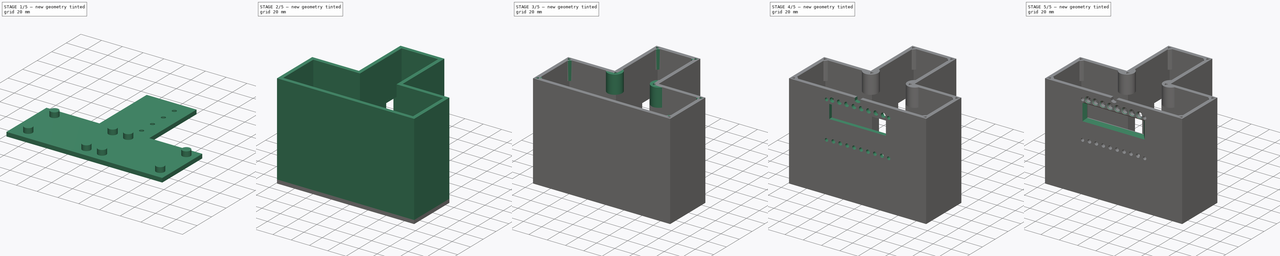
[diagram: build sequence overview — one tinted view per stage of 5, left to right]
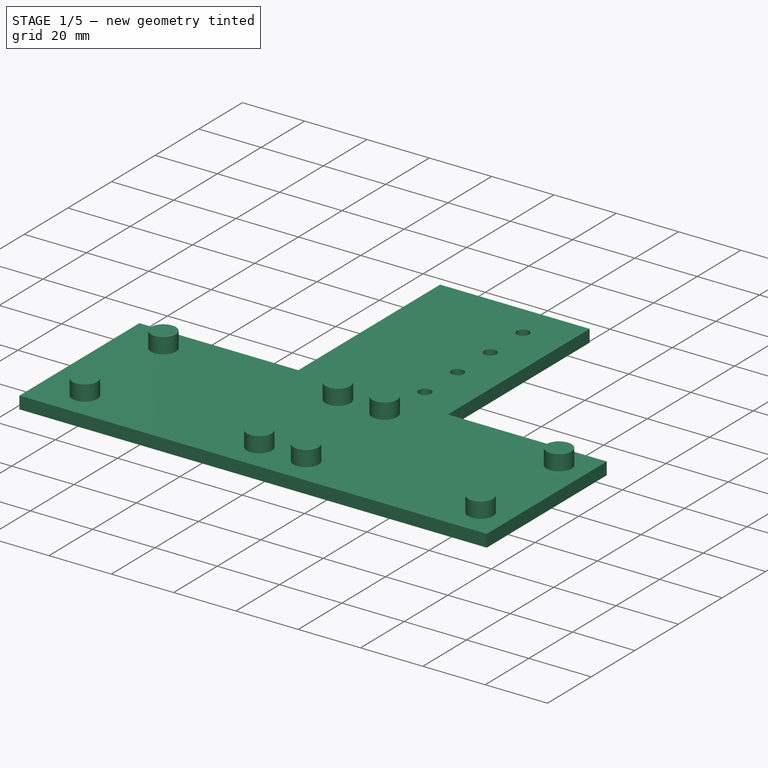
[diagram: stage 1 of 5 — iso view after this stage's code; geometry added in this stage tinted green]
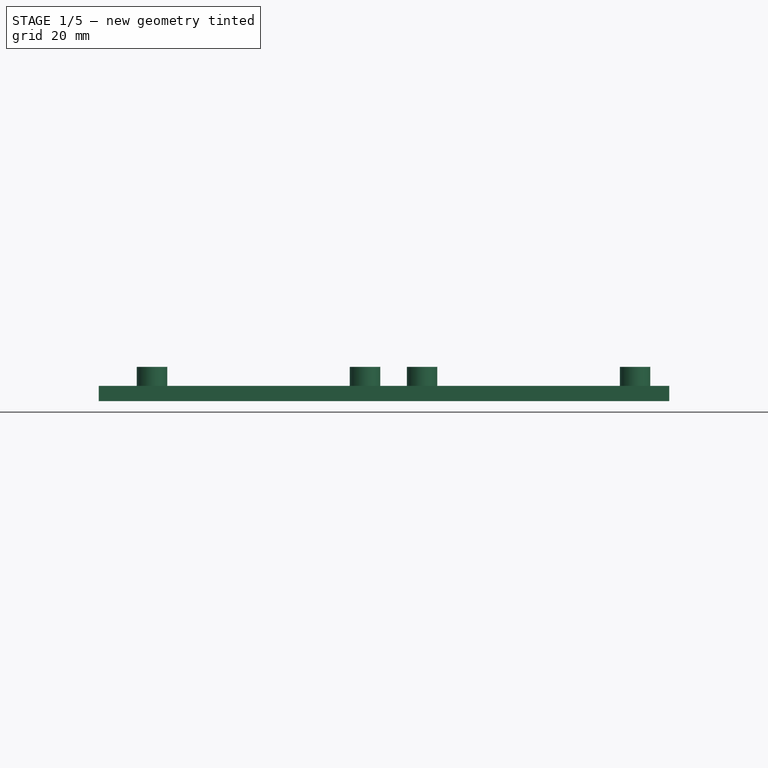
[diagram: stage 1 of 5 — front view after this stage's code; geometry added in this stage tinted green]
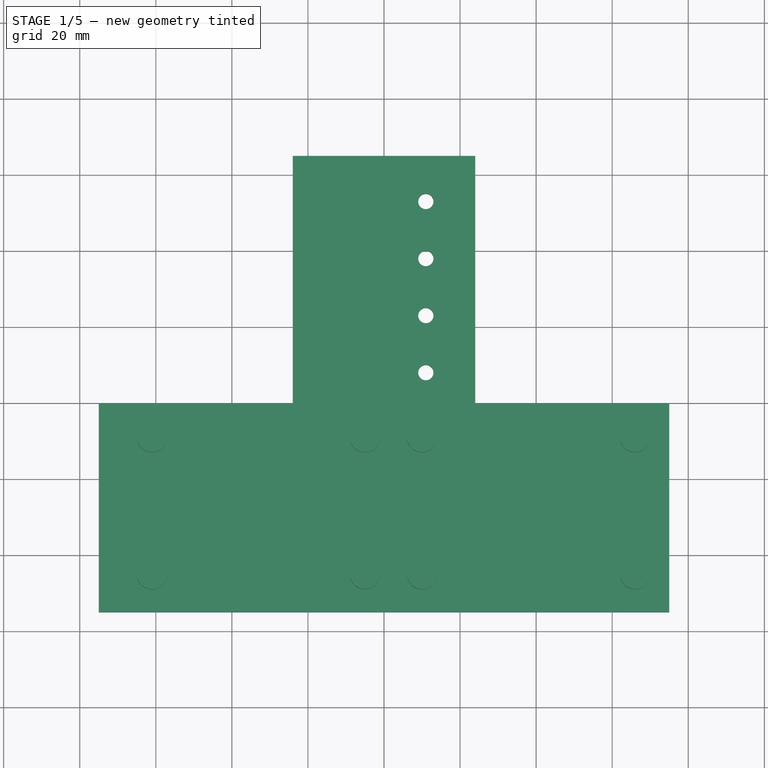
[diagram: stage 1 of 5 — top view after this stage's code; geometry added in this stage tinted green]
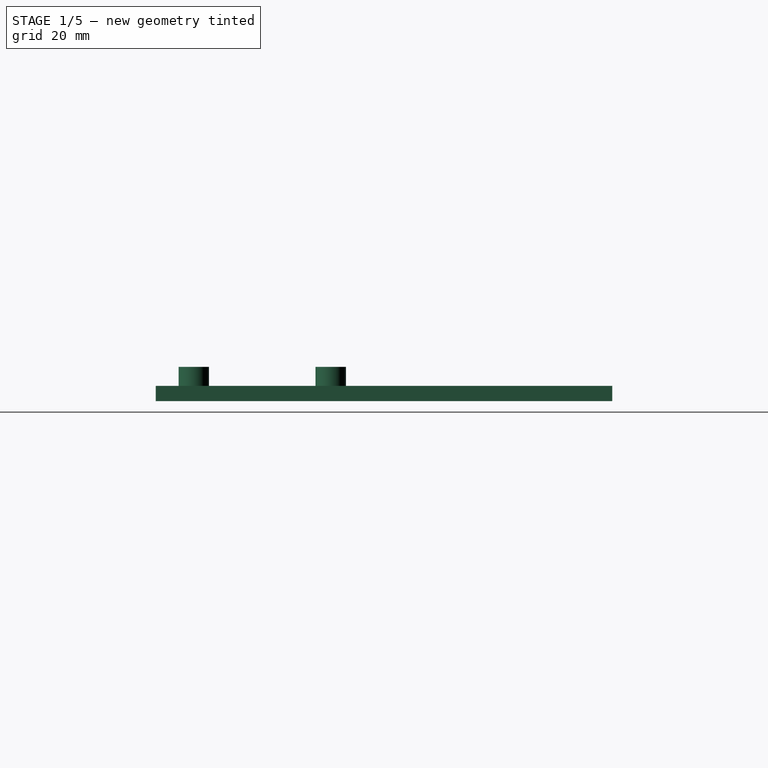
[diagram: stage 1 of 5 — right view after this stage's code; geometry added in this stage tinted green]
FCSTD DOCUMENT  (FreeCAD 0.19R)
Label: case
License: All rights reserved
LicenseURL: http://en.wikipedia.org/wiki/All_rights_reserved
objects: PartDesign::CoordinateSystem×16, Sketcher::SketchObject×12, PartDesign::Pocket×7, PartDesign::Pad×5, PartDesign::Chamfer×3, PartDesign::Body×1
note: 59 computed .brp shape members not serialized (recipe doc carries the construction recipe); baked Part::Feature solids carry a one-line shape summary decoded from their .brp

FEATURE [Sketcher::SketchObject] Sketch
  FullyConstrained = true
  MapMode = 5
  Support = -> [XY_Plane]
  sketch-geometry (8):
    g0: LineSegment StartX=-24 StartY=65 StartZ=0 EndX=24 EndY=65 EndZ=0
    g1: LineSegment StartX=75 StartY=-55 StartZ=0 EndX=-75 EndY=-55 EndZ=0
    g2: LineSegment StartX=-24 StartY=65 StartZ=0 EndX=-24 EndY=0 EndZ=0
    g3: LineSegment StartX=-75 StartY=-55 StartZ=0 EndX=-75 EndY=0 EndZ=0
    g4: LineSegment StartX=-75 StartY=0 StartZ=0 EndX=-24 EndY=0 EndZ=0
    g5: LineSegment StartX=75 StartY=-55 StartZ=0 EndX=75 EndY=0 EndZ=0
    g6: LineSegment StartX=75 StartY=0 StartZ=0 EndX=24 EndY=0 EndZ=0
    g7: LineSegment StartX=24 StartY=0 StartZ=0 EndX=24 EndY=65 EndZ=0
  constraints (22):
    c: Horizontal(g1)
    c: DistanceX(g0,g0) = 48
    c: Symmetric(g0,g0,g-2)
    c: DistanceY(g1,g0) = 120
    c: Coincident(g2,g0)
    c: Vertical(g2)
    c: DistanceX(g1,g1) = 150
    c: Coincident(g3,g1)
    c: Vertical(g3)
    c: Coincident(g4,g3)
    c: Horizontal(g4)
    c: Coincident(g2,g4)
    c: DistanceY(g2,g2) = 65
    c: Coincident(g5,g1)
    c: Vertical(g5)
    c: Coincident(g6,g5)
    c: Horizontal(g6)
    c: Coincident(g7,g6)
    c: Coincident(g7,g0)
    c: Vertical(g7)
    c: Symmetric(g3,g5,g-2)
    c: PointOnObject(g6,g-1)
FEATURE [PartDesign::Pad] Pad
  Direction = (1,1,1)
  Length = 4
  Length2 = 100
  Profile = -> Sketch
  Type = 0
FEATURE [Sketcher::SketchObject] Sketch001
  ExternalGeometry = -> [Pad]
  FullyConstrained = true
  MapMode = 5
  Placement = pos=(0,0,4) rot=(0,0,1;0rad)
  Support = -> [Pad]
  sketch-geometry (4):
    g0: Circle CenterX=11 CenterY=53 CenterZ=0 NormalX=0 NormalY=0 NormalZ=1 AngleXU=0 Radius=2
    g1: Circle CenterX=11 CenterY=38 CenterZ=0 NormalX=0 NormalY=0 NormalZ=1 AngleXU=0 Radius=2
    g2: Circle CenterX=11 CenterY=23 CenterZ=0 NormalX=0 NormalY=0 NormalZ=1 AngleXU=0 Radius=2
    g3: Circle CenterX=11 CenterY=8 CenterZ=0 NormalX=0 NormalY=0 NormalZ=1 AngleXU=0 Radius=2
  constraints (12):
    c: DistanceY(g1,g0) = 15
    c: Equal(g0,g1)
    c: Equal(g1,g2)
    c: Equal(g2,g3)
    c: Diameter(g0) = 4
    c: DistanceY(g3,g2) = 15
    c: Vertical(g1,g0)
    c: Vertical(g2,g3)
    c: Vertical(g2,g1)
    c: DistanceY(g2,g1) = 15
    c: DistanceY(g0,g-4) = 12
    c: DistanceX(g0,g-4) = 13
FEATURE [PartDesign::CoordinateSystem] LCS_3  label="LCS_BASE"
  AttacherType = Attacher::AttachEngine3D
  MapMode = 1
  Placement = pos=(-75,-55,0) rot=(0.57735,0.57735,0.57735;2.0944rad)
  Support = -> [Sketch]
FEATURE [PartDesign::Pocket] Pocket
  BaseFeature = -> Pad
  Length = 5
  Length2 = 100
  Profile = -> Sketch001
  Type = 1
FEATURE [PartDesign::CoordinateSystem] LCS_1
  AttacherType = Attacher::AttachEngine3D
  MapMode = 11
  Placement = pos=(11,53,4) rot=(0,0,1;1.5708rad)
  Support = -> [Pocket]
FEATURE [PartDesign::CoordinateSystem] LCS_2
  AttacherType = Attacher::AttachEngine3D
  MapMode = 11
  Placement = pos=(11,23,4) rot=(0,0,1;1.5708rad)
  Support = -> [Pocket]
FEATURE [Sketcher::SketchObject] Sketch002
  ExternalGeometry = -> [Pocket]
  FullyConstrained = true
  MapMode = 5
  Placement = pos=(0,0,4) rot=(0,0,1;0rad)
  Support = -> [Pocket]
  sketch-geometry (8):
    g0: Circle CenterX=10 CenterY=-9 CenterZ=0 NormalX=0 NormalY=0 NormalZ=1 AngleXU=0 Radius=4
    g1: Circle CenterX=66 CenterY=-9 CenterZ=0 NormalX=0 NormalY=0 NormalZ=1 AngleXU=0 Radius=4
    g2: Circle CenterX=10 CenterY=-45 CenterZ=0 NormalX=0 NormalY=0 NormalZ=1 AngleXU=0 Radius=4
    g3: Circle CenterX=66 CenterY=-45 CenterZ=0 NormalX=0 NormalY=0 NormalZ=1 AngleXU=0 Radius=4
    g4: Circle CenterX=-61 CenterY=-9 CenterZ=0 NormalX=0 NormalY=0 NormalZ=1 AngleXU=0 Radius=4
    g5: Circle CenterX=-5 CenterY=-9 CenterZ=0 NormalX=0 NormalY=0 NormalZ=1 AngleXU=0 Radius=4
    g6: Circle CenterX=-5 CenterY=-45 CenterZ=0 NormalX=0 NormalY=0 NormalZ=1 AngleXU=0 Radius=4
    g7: Circle CenterX=-61 CenterY=-45 CenterZ=0 NormalX=0 NormalY=0 NormalZ=1 AngleXU=0 Radius=4
  constraints (24):
    c: Equal(g3,g2)
    c: Equal(g2,g0)
    c: Equal(g0,g1)
    c: Horizontal(g0,g1)
    c: Horizontal(g2,g3)
    c: Vertical(g3,g1)
    c: Vertical(g0,g2)
    c: Diameter(g3) = 8
    c: DistanceY(g3,g1) = 36
    c: DistanceX(g2,g3) = 56
    c: DistanceX(g3,g-3) = 9
    c: DistanceY(g-3,g3) = 10
    c: Equal(g7,g6)
    c: Equal(g6,g5)
    c: Equal(g5,g4)
    c: Diameter(g6) = 8
    c: Vertical(g6,g5)
    c: Vertical(g4,g7)
    c: Horizontal(g4,g5)
    c: Horizontal(g7,g6)
    c: DistanceY(g6,g5) = 36
    c: DistanceX(g4,g5) = 56
    c: Horizontal(g2,g6)
    c: DistanceX(g6,g2) = 15
FEATURE [PartDesign::Pad] Pad001
  BaseFeature = -> Pocket
  Direction = (1,1,1)
  Length = 5
  Length2 = 100
  Profile = -> Sketch002
  Type = 0
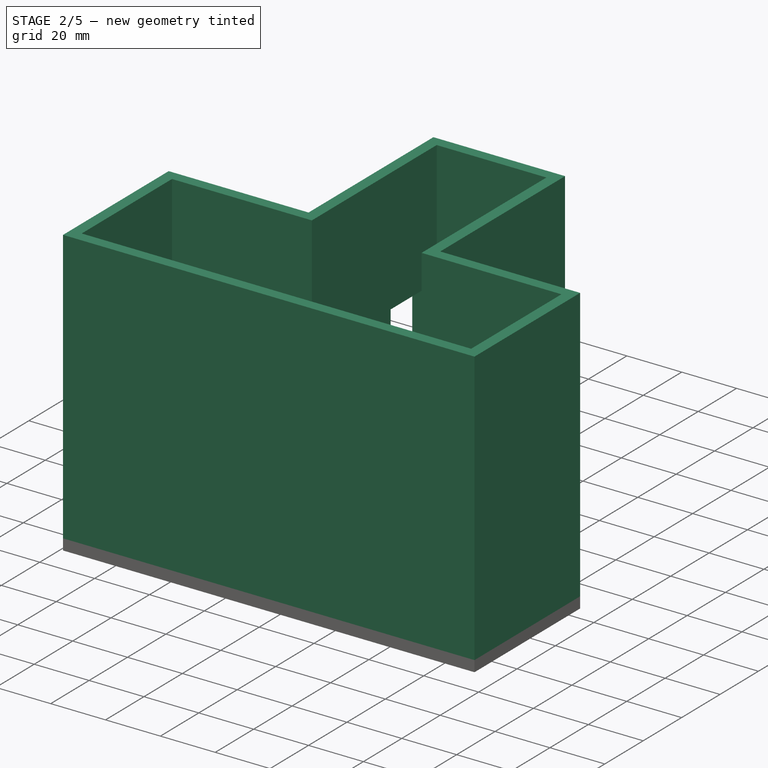
[diagram: stage 2 of 5 — iso view after this stage's code; geometry added in this stage tinted green]
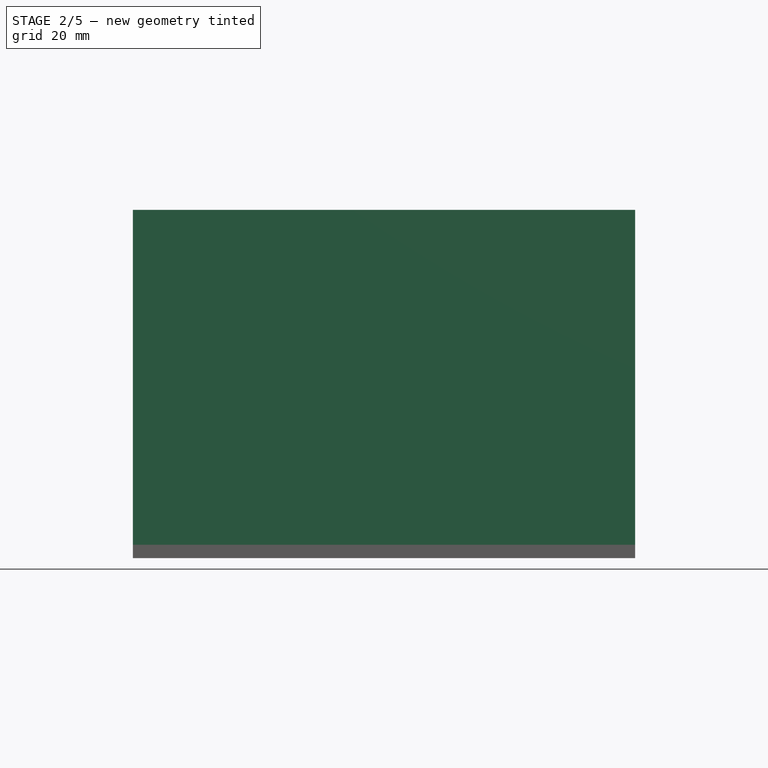
[diagram: stage 2 of 5 — front view after this stage's code; geometry added in this stage tinted green]
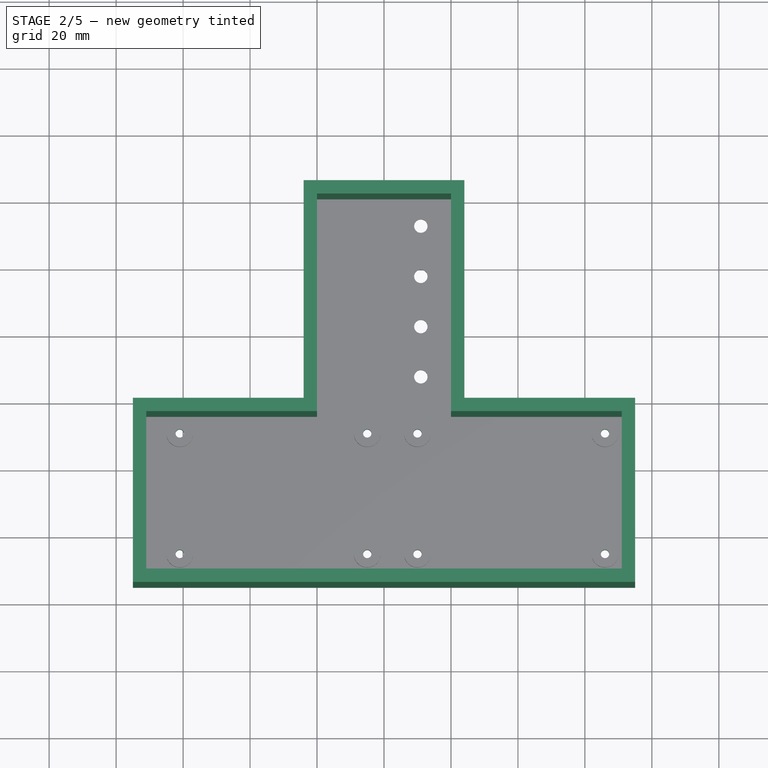
[diagram: stage 2 of 5 — top view after this stage's code; geometry added in this stage tinted green]
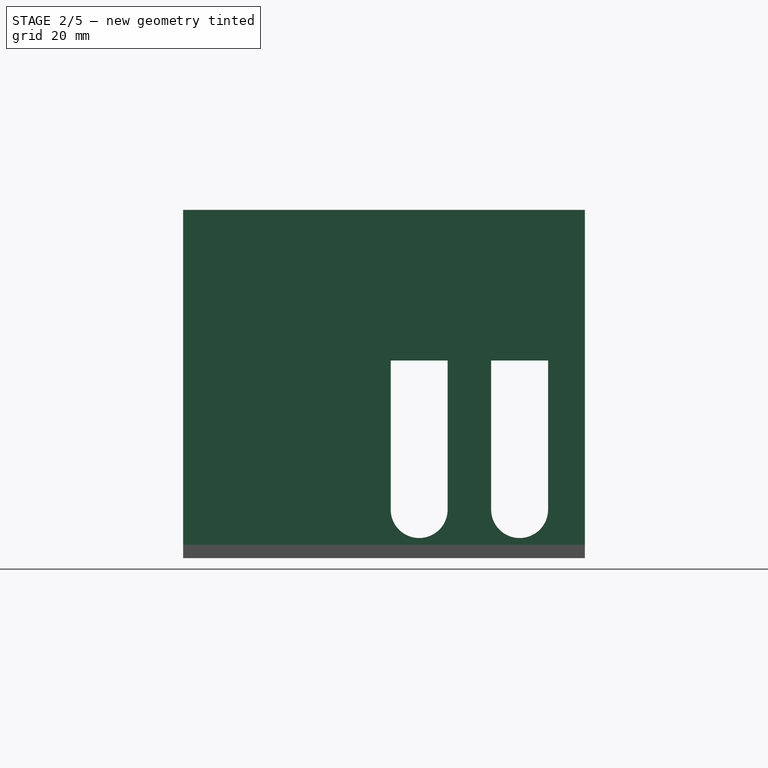
[diagram: stage 2 of 5 — right view after this stage's code; geometry added in this stage tinted green]
FEATURE [Sketcher::SketchObject] Sketch003
  ExternalGeometry = -> [Pad001]
  FullyConstrained = true
  MapMode = 5
  Placement = pos=(0,0,9) rot=(0,0,1;0rad)
  Support = -> [Pad001]
  sketch-geometry (8):
    g0: Circle CenterX=-61 CenterY=-9 CenterZ=0 NormalX=0 NormalY=0 NormalZ=1 AngleXU=0 Radius=1.25
    g1: Circle CenterX=-61 CenterY=-45 CenterZ=0 NormalX=0 NormalY=0 NormalZ=1 AngleXU=0 Radius=1.25
    g2: Circle CenterX=-5 CenterY=-45 CenterZ=0 NormalX=0 NormalY=0 NormalZ=1 AngleXU=0 Radius=1.25
    g3: Circle CenterX=-5 CenterY=-9 CenterZ=0 NormalX=0 NormalY=0 NormalZ=1 AngleXU=0 Radius=1.25
    g4: Circle CenterX=10 CenterY=-9 CenterZ=0 NormalX=0 NormalY=0 NormalZ=1 AngleXU=0 Radius=1.25
    g5: Circle CenterX=66 CenterY=-9 CenterZ=0 NormalX=0 NormalY=0 NormalZ=1 AngleXU=0 Radius=1.25
    g6: Circle CenterX=10 CenterY=-45 CenterZ=0 NormalX=0 NormalY=0 NormalZ=1 AngleXU=0 Radius=1.25
    g7: Circle CenterX=66 CenterY=-45 CenterZ=0 NormalX=0 NormalY=0 NormalZ=1 AngleXU=0 Radius=1.25
  constraints (16):
    c: Coincident(g0,g-3)
    c: Coincident(g1,g-4)
    c: Coincident(g2,g-5)
    c: Coincident(g3,g-8)
    c: Coincident(g4,g-7)
    c: Coincident(g5,g-10)
    c: Coincident(g6,g-6)
    c: Coincident(g7,g-9)
    c: Equal(g0,g1)
    c: Equal(g1,g3)
    c: Equal(g3,g4)
    c: Equal(g4,g2)
    c: Equal(g2,g6)
    c: Equal(g6,g7)
    c: Equal(g7,g5)
    c: Diameter(g5) = 2.5
FEATURE [PartDesign::Pocket] Pocket001
  BaseFeature = -> Pad001
  Length = 5
  Length2 = 100
  Profile = -> Sketch003
  Type = 1
FEATURE [PartDesign::CoordinateSystem] LCS_4
  AttacherType = Attacher::AttachEngine3D
  MapMode = 11
  Placement = pos=(-5,-45,9) rot=(0,0,1;1.5708rad)
  Support = -> [Pocket001]
FEATURE [PartDesign::CoordinateSystem] LCS_5
  AttacherType = Attacher::AttachEngine3D
  MapMode = 11
  Placement = pos=(66,-45,9) rot=(0,0,1;1.5708rad)
  Support = -> [Pocket001]
FEATURE [Sketcher::SketchObject] Sketch004
  ExternalGeometry = -> [Pocket001]
  FullyConstrained = true
  MapMode = 5
  Placement = pos=(0,0,4) rot=(0,0,1;0rad)
  Support = -> [Pocket001]
  sketch-geometry (16):
    g0: LineSegment StartX=-75 StartY=0 StartZ=0 EndX=-24 EndY=0 EndZ=0
    g1: LineSegment StartX=-24 StartY=0 StartZ=0 EndX=-24 EndY=65 EndZ=0
    g2: LineSegment StartX=-24 StartY=65 StartZ=0 EndX=24 EndY=65 EndZ=0
    g3: LineSegment StartX=24 StartY=65 StartZ=0 EndX=24 EndY=0 EndZ=0
    g4: LineSegment StartX=24 StartY=0 StartZ=0 EndX=75 EndY=0 EndZ=0
    g5: LineSegment StartX=75 StartY=0 StartZ=0 EndX=75 EndY=-55 EndZ=0
    g6: LineSegment StartX=75 StartY=-55 StartZ=0 EndX=-75 EndY=-55 EndZ=0
    g7: LineSegment StartX=-75 StartY=-55 StartZ=0 EndX=-75 EndY=0 EndZ=0
    g8: LineSegment StartX=-71 StartY=-4 StartZ=0 EndX=-20 EndY=-4 EndZ=0
    g9: LineSegment StartX=-20 StartY=-4 StartZ=0 EndX=-20 EndY=61 EndZ=0
    g10: LineSegment StartX=-20 StartY=61 StartZ=0 EndX=20 EndY=61 EndZ=0
    g11: LineSegment StartX=20 StartY=61 StartZ=0 EndX=20 EndY=-4 EndZ=0
    g12: LineSegment StartX=20 StartY=-4 StartZ=0 EndX=71 EndY=-4 EndZ=0
    g13: LineSegment StartX=71 StartY=-4 StartZ=0 EndX=71 EndY=-51 EndZ=0
    g14: LineSegment StartX=71 StartY=-51 StartZ=0 EndX=-71 EndY=-51 EndZ=0
    g15: LineSegment StartX=-71 StartY=-51 StartZ=0 EndX=-71 EndY=-4 EndZ=0
  constraints (40):
    c: Coincident(g-5,g0)
    c: Coincident(g0,g-5)
    c: Coincident(g0,g1)
    c: Coincident(g1,g-6)
    c: Coincident(g1,g2)
    c: Coincident(g2,g-6)
    c: Coincident(g2,g3)
    c: Coincident(g3,g-4)
    c: Coincident(g3,g4)
    c: Coincident(g4,g-4)
    c: Coincident(g4,g5)
    c: Coincident(g5,g-3)
    c: Coincident(g5,g6)
    c: Coincident(g6,g-3)
    c: Coincident(g6,g7)
    c: Coincident(g7,g0)
    c: Horizontal(g8)
    c: Coincident(g8,g9)
    c: Vertical(g9)
    c: Coincident(g9,g10)
    c: Horizontal(g10)
    c: Coincident(g10,g11)
    c: Vertical(g11)
    c: Coincident(g11,g12)
    c: Horizontal(g12)
    c: Coincident(g12,g13)
    c: Vertical(g13)
    c: Coincident(g13,g14)
    c: Horizontal(g14)
    c: Coincident(g14,g15)
    c: Coincident(g15,g8)
    c: Vertical(g15)
    c: DistanceY(g6,g14) = 4
    c: DistanceX(g0,g8) = 4
    c: DistanceY(g8,g0) = 4
    c: DistanceX(g1,g9) = 4
    c: DistanceY(g10,g2) = 4
    c: DistanceX(g11,g3) = 4
    c: DistanceY(g12,g4) = 4
    c: DistanceX(g13,g5) = 4
FEATURE [PartDesign::Pad] Pad002
  BaseFeature = -> Pocket001
  Direction = (1,1,1)
  Length = 100
  Length2 = 100
  Profile = -> Sketch004
  Type = 0
FEATURE [Sketcher::SketchObject] Sketch005
  ExternalGeometry = -> [Pad002]
  FullyConstrained = true
  MapMode = 5
  Placement = pos=(24,0,0) rot=(0.57735,0.57735,0.57735;2.0944rad)
  Support = -> [Pad002]
  sketch-geometry (8):
    g0: ArcOfCircle CenterX=15.5 CenterY=14.5 CenterZ=0 NormalX=0 NormalY=0 NormalZ=1 AngleXU=0 Radius=8.5 StartAngle=3.14159 EndAngle=6.28319
    g1: LineSegment StartX=7 StartY=14.5 StartZ=0 EndX=7 EndY=59 EndZ=0
    g2: LineSegment StartX=7 StartY=59 StartZ=0 EndX=24 EndY=59 EndZ=0
    g3: LineSegment StartX=24 StartY=59 StartZ=0 EndX=24 EndY=14.5 EndZ=0
    g4: ArcOfCircle CenterX=45.5 CenterY=14.5 CenterZ=0 NormalX=0 NormalY=0 NormalZ=1 AngleXU=0 Radius=8.5 StartAngle=3.14159 EndAngle=6.28319
    g5: LineSegment StartX=37 StartY=14.5 StartZ=0 EndX=37 EndY=59 EndZ=0
    g6: LineSegment StartX=37 StartY=59 StartZ=0 EndX=54 EndY=59 EndZ=0
    g7: LineSegment StartX=54 StartY=59 StartZ=0 EndX=54 EndY=14.5 EndZ=0
  constraints (24):
    c: Horizontal(g0,g0)
    c: Tangent(g0,g1) = 1.5708
    c: Coincident(g1,g2)
    c: Horizontal(g2)
    c: Coincident(g2,g3)
    c: Coincident(g3,g0)
    c: Vertical(g3)
    c: Tangent(g3,g0)
    c: DistanceX(g2,g2) = 17
    c: DistanceX(g0,g-3) = 49.5
    c: DistanceY(g-3,g0) = 10.5
    c: DistanceY(g2,g-4) = 45
    c: Horizontal(g4,g4)
    c: Tangent(g4,g5) = 1.5708
    c: Coincident(g5,g6)
    c: Horizontal(g6)
    c: Coincident(g6,g7)
    c: Coincident(g7,g4)
    c: Vertical(g7)
    c: Tangent(g7,g4)
    c: Equal(g2,g6) = 17
    c: Horizontal(g4,g0)
    c: Horizontal(g5,g2)
    c: DistanceX(g0,g4) = 30
FEATURE [PartDesign::Pocket] Pocket002
  BaseFeature = -> Pad002
  Length = 4
  Length2 = 100
  Profile = -> Sketch005
  Type = 1
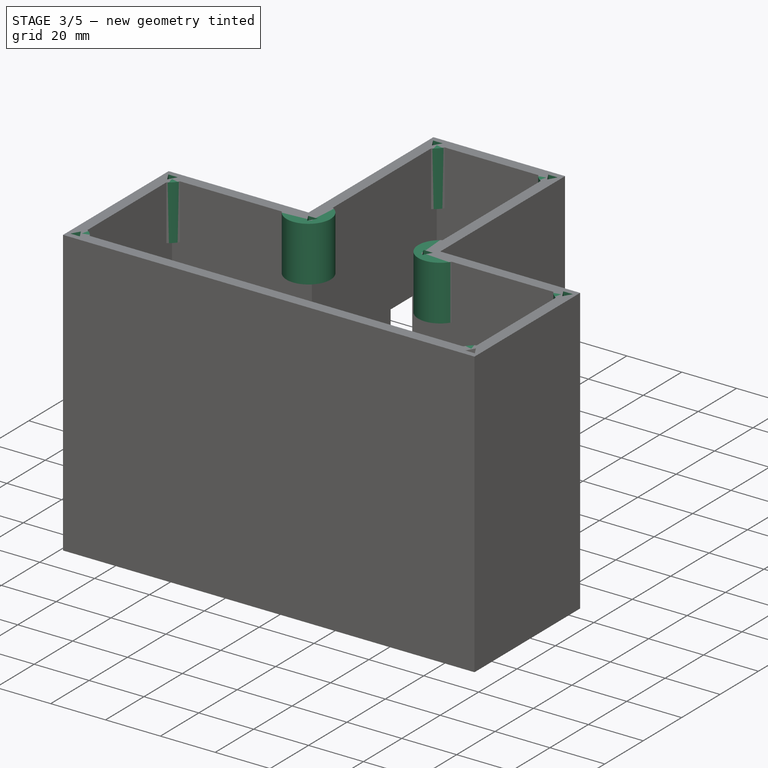
[diagram: stage 3 of 5 — iso view after this stage's code; geometry added in this stage tinted green]
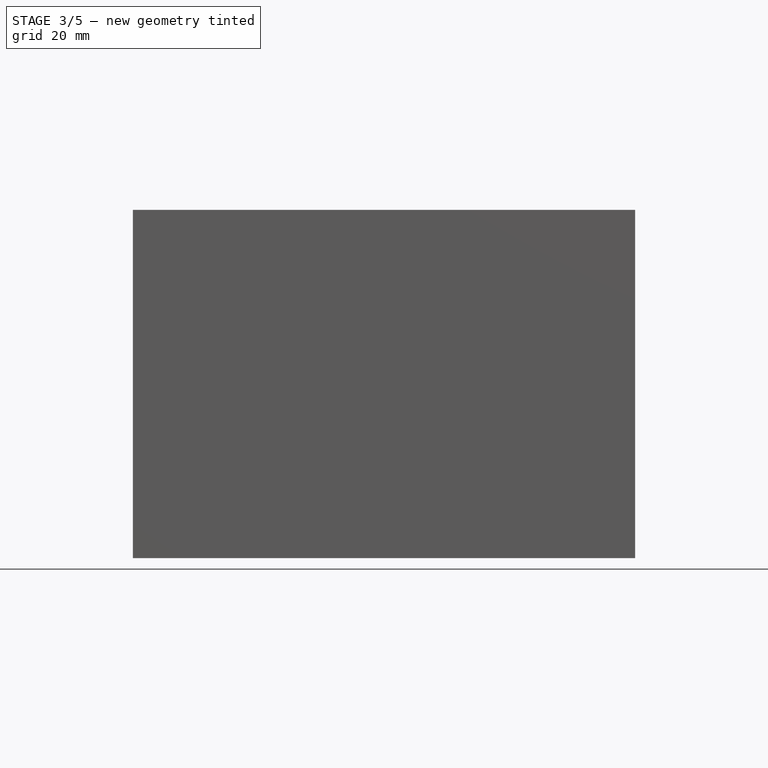
[diagram: stage 3 of 5 — front view after this stage's code; geometry added in this stage tinted green]
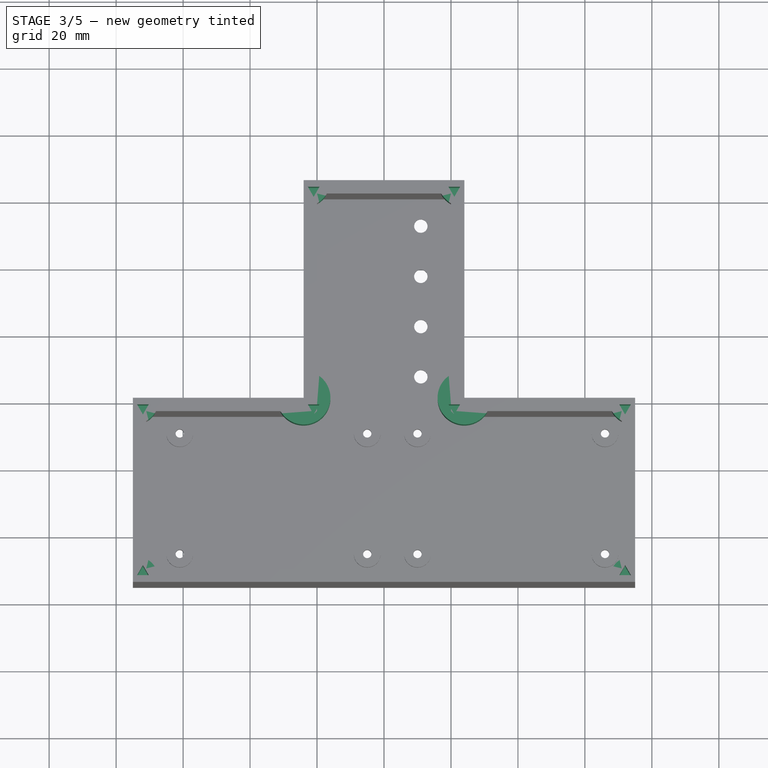
[diagram: stage 3 of 5 — top view after this stage's code; geometry added in this stage tinted green]
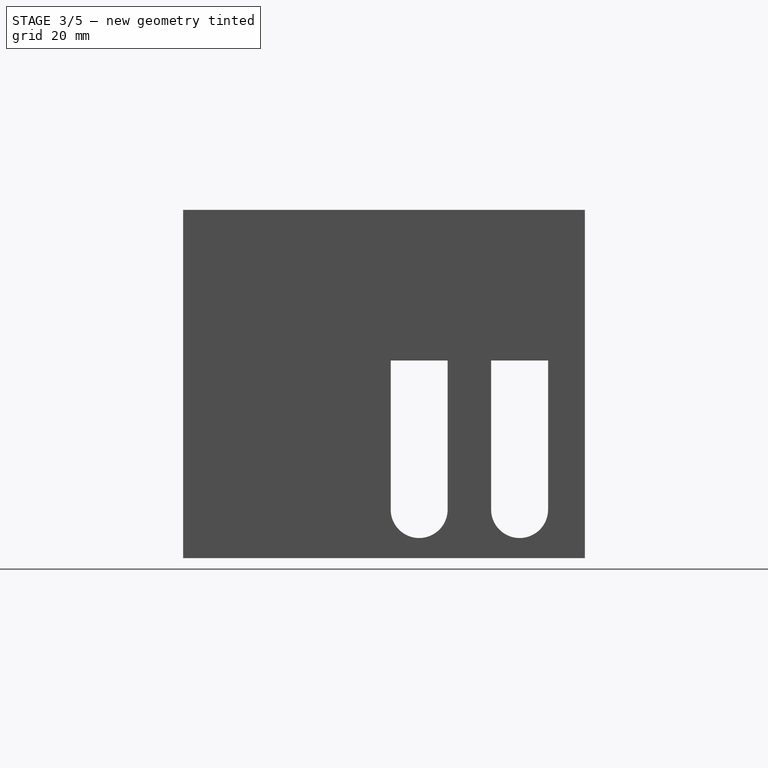
[diagram: stage 3 of 5 — right view after this stage's code; geometry added in this stage tinted green]
FEATURE [Sketcher::SketchObject] Sketch006
  ExternalGeometry = -> [Pocket002]
  FullyConstrained = true
  MapMode = 5
  Placement = pos=(-75,0,0) rot=(0.57735,-0.57735,-0.57735;2.0944rad)
  Support = -> [Pocket002]
  sketch-geometry (1):
    g0: Circle CenterX=30 CenterY=79 CenterZ=0 NormalX=0 NormalY=0 NormalZ=1 AngleXU=0 Radius=6.25
  constraints (3):
    c: Diameter(g0) = 12.5
    c: DistanceY(g0,g-3) = 25
    c: DistanceX(g0,g-3) = 25
FEATURE [PartDesign::Pocket] Pocket003
  BaseFeature = -> Pocket002
  Length = 4
  Length2 = 100
  Profile = -> Sketch006
  Type = 0
FEATURE [PartDesign::CoordinateSystem] LCS_6
  AttacherType = Attacher::AttachEngine3D
  MapMode = 11
  Placement = pos=(-75,-30,79) rot=(0,-1,0;1.5708rad)
  Support = -> [Pocket003]
FEATURE [Sketcher::SketchObject] Sketch007
  ExternalGeometry = -> [Pocket003]
  FullyConstrained = true
  MapMode = 5
  Placement = pos=(0,0,104) rot=(0,0,1;0rad)
  Support = -> [Pocket003]
  sketch-geometry (24):
    g0: LineSegment StartX=-24 StartY=65 StartZ=0 EndX=-16 EndY=65 EndZ=0
    g1: LineSegment StartX=-24 StartY=65 StartZ=0 EndX=-24 EndY=57 EndZ=0
    g2: ArcOfCircle CenterX=-24 CenterY=65 CenterZ=0 NormalX=0 NormalY=0 NormalZ=1 AngleXU=0 Radius=8 StartAngle=4.71239 EndAngle=6.28319
    g3: LineSegment StartX=24 StartY=65 StartZ=0 EndX=16 EndY=65 EndZ=0
    g4: LineSegment StartX=24 StartY=65 StartZ=0 EndX=24 EndY=57 EndZ=0
    g5: ArcOfCircle CenterX=24 CenterY=65 CenterZ=0 NormalX=0 NormalY=0 NormalZ=1 AngleXU=0 Radius=8 StartAngle=3.14159 EndAngle=4.71239
    g6: ArcOfCircle CenterX=-24 CenterY=0 CenterZ=0 NormalX=0 NormalY=0 NormalZ=1 AngleXU=0 Radius=8 StartAngle=3.14159 EndAngle=7.85398
    g7: ArcOfCircle CenterX=24 CenterY=0 CenterZ=0 NormalX=0 NormalY=0 NormalZ=1 AngleXU=0 Radius=8 StartAngle=1.5708 EndAngle=6.28319
    g8: LineSegment StartX=75 StartY=0 StartZ=0 EndX=67 EndY=2.9e-12 EndZ=0
    g9: LineSegment StartX=75 StartY=0 StartZ=0 EndX=75 EndY=-8 EndZ=0
    g10: LineSegment StartX=75 StartY=-55 StartZ=0 EndX=75 EndY=-47 EndZ=0
    g11: LineSegment StartX=75 StartY=-55 StartZ=0 EndX=67 EndY=-55 EndZ=0
    g12: LineSegment StartX=-75 StartY=-55 StartZ=0 EndX=-67 EndY=-55 EndZ=0
    g13: LineSegment StartX=-75 StartY=-55 StartZ=0 EndX=-75 EndY=-47 EndZ=0
    g14: LineSegment StartX=-75 StartY=0 StartZ=0 EndX=-67 EndY=-2e-15 EndZ=0
    g15: LineSegment StartX=-75 StartY=0 StartZ=0 EndX=-75 EndY=-8 EndZ=0
    g16: ArcOfCircle CenterX=-75 CenterY=0 CenterZ=0 NormalX=0 NormalY=0 NormalZ=1 AngleXU=0 Radius=8 StartAngle=4.71239 EndAngle=6.28319
    g17: ArcOfCircle CenterX=-75 CenterY=-55 CenterZ=0 NormalX=0 NormalY=0 NormalZ=1 AngleXU=0 Radius=8 StartAngle=-1.87e-14 EndAngle=1.5708
    g18: ArcOfCircle CenterX=75 CenterY=-55 CenterZ=0 NormalX=0 NormalY=0 NormalZ=1 AngleXU=0 Radius=8 StartAngle=1.5708 EndAngle=3.14159
    g19: ArcOfCircle CenterX=75 CenterY=0 CenterZ=0 NormalX=0 NormalY=0 NormalZ=1 AngleXU=0 Radius=8 StartAngle=3.14159 EndAngle=4.71239
    g20: LineSegment StartX=-24 StartY=8 StartZ=0 EndX=-24 EndY=0 EndZ=0
    g21: LineSegment StartX=-24 StartY=0 StartZ=0 EndX=-32 EndY=1e-15 EndZ=0
    g22: LineSegment StartX=32 StartY=-2e-15 StartZ=0 EndX=24 EndY=0 EndZ=0
    g23: LineSegment StartX=24 StartY=8 StartZ=0 EndX=24 EndY=0 EndZ=0
  constraints (64):
    c: Coincident(g0,g-3)
    c: PointOnObject(g0,g-3)
    c: Coincident(g1,g0)
    c: Vertical(g1)
    c: Coincident(g2,g0)
    c: Coincident(g2,g1)
    c: Coincident(g2,g0)
    c: DistanceX(g0,g0) = 8
    c: Coincident(g3,g-3)
    c: PointOnObject(g3,g-3)
    c: Coincident(g4,g3)
    c: Vertical(g4)
    c: Coincident(g5,g3)
    c: Coincident(g5,g3)
    c: Coincident(g5,g4)
    c: DistanceX(g3,g3) = 8
    c: Coincident(g6,g-4)
    c: PointOnObject(g6,g-4)
    c: Vertical(g6,g6)
    c: Diameter(g6) = 16
    c: Coincident(g7,g-5)
    c: PointOnObject(g7,g-5)
    c: Vertical(g7,g7)
    c: Diameter(g7) = 16
    c: Coincident(g8,g-5)
    c: PointOnObject(g8,g-5)
    c: Coincident(g9,g8)
    c: Vertical(g9)
    c: Coincident(g10,g-6)
    c: Vertical(g10)
    c: Coincident(g11,g10)
    c: PointOnObject(g11,g-6)
    c: Coincident(g12,g-6)
    c: PointOnObject(g12,g-6)
    c: Coincident(g13,g12)
    c: Vertical(g13)
    c: Coincident(g14,g-4)
    c: PointOnObject(g14,g-4)
    c: Coincident(g15,g14)
    c: Vertical(g15)
    c: Coincident(g16,g14)
    c: Coincident(g16,g14)
    c: Coincident(g16,g15)
    c: Coincident(g17,g12)
    c: Coincident(g17,g13)
    c: Coincident(g17,g12)
    c: Coincident(g18,g10)
    c: Coincident(g18,g10)
    c: Coincident(g18,g11)
    c: Coincident(g19,g8)
    c: Coincident(g19,g9)
    c: Coincident(g19,g8)
    c: DistanceX(g8,g8) = 8
    c: DistanceX(g14,g14) = 8
    c: DistanceX(g12,g12) = 8
    c: DistanceX(g11,g11) = 8
    c: Coincident(g20,g6)
    c: Coincident(g20,g6)
    c: Coincident(g21,g6)
    c: Coincident(g21,g6)
    c: Coincident(g22,g7)
    c: Coincident(g22,g7)
    c: Coincident(g23,g7)
    c: Coincident(g23,g7)
FEATURE [PartDesign::Pad] Pad003
  BaseFeature = -> Pocket003
  Direction = (1,1,1)
  Length = 20
  Length2 = 100
  Profile = -> Sketch007
  Reversed = true
  Type = 0
FEATURE [Sketcher::SketchObject] Sketch008
  ExternalGeometry = -> [Pad003]
  FullyConstrained = true
  MapMode = 5
  Placement = pos=(0,0,104) rot=(0,0,1;0rad)
  Support = -> [Pad003]
  sketch-geometry (32):
    g0: LineSegment StartX=-70.2679 StartY=-53 StartZ=0 EndX=-72 EndY=-50 EndZ=0
    g1: LineSegment StartX=-72 StartY=-50 StartZ=0 EndX=-73.7321 EndY=-53 EndZ=0
    g2: LineSegment StartX=-73.7321 StartY=-53 StartZ=0 EndX=-70.2679 EndY=-53 EndZ=0
    g3: Circle CenterX=-72 CenterY=-52 CenterZ=0 NormalX=0 NormalY=0 NormalZ=1 AngleXU=0 Radius=2
    g4: LineSegment StartX=-72 StartY=-5 StartZ=0 EndX=-70.2679 EndY=-2 EndZ=0
    g5: LineSegment StartX=-70.2679 StartY=-2 StartZ=0 EndX=-73.7321 EndY=-2 EndZ=0
    g6: LineSegment StartX=-73.7321 StartY=-2 StartZ=0 EndX=-72 EndY=-5 EndZ=0
    g7: Circle CenterX=-72 CenterY=-3 CenterZ=0 NormalX=0 NormalY=0 NormalZ=1 AngleXU=0 Radius=2
    g8: LineSegment StartX=73.7321 StartY=-53 StartZ=0 EndX=72 EndY=-50 EndZ=0
    g9: LineSegment StartX=72 StartY=-50 StartZ=0 EndX=70.2679 EndY=-53 EndZ=0
    g10: LineSegment StartX=70.2679 StartY=-53 StartZ=0 EndX=73.7321 EndY=-53 EndZ=0
    g11: Circle CenterX=72 CenterY=-52 CenterZ=0 NormalX=0 NormalY=0 NormalZ=1 AngleXU=0 Radius=2
    g12: LineSegment StartX=73.7321 StartY=-2 StartZ=0 EndX=70.2679 EndY=-2 EndZ=0
    g13: LineSegment StartX=70.2679 StartY=-2 StartZ=0 EndX=72 EndY=-5 EndZ=0
    g14: LineSegment StartX=72 StartY=-5 StartZ=0 EndX=73.7321 EndY=-2 EndZ=0
    g15: Circle CenterX=72 CenterY=-3 CenterZ=0 NormalX=0 NormalY=0 NormalZ=1 AngleXU=0 Radius=2
    g16: LineSegment StartX=21 StartY=-5 StartZ=0 EndX=22.7321 EndY=-2 EndZ=0
    g17: LineSegment StartX=22.7321 StartY=-2 StartZ=0 EndX=19.2679 EndY=-2 EndZ=0
    g18: LineSegment StartX=19.2679 StartY=-2 StartZ=0 EndX=21 EndY=-5 EndZ=0
    g19: Circle CenterX=21 CenterY=-3 CenterZ=0 NormalX=0 NormalY=0 NormalZ=1 AngleXU=0 Radius=2
    g20: LineSegment StartX=-21 StartY=-5 StartZ=0 EndX=-19.2679 EndY=-2 EndZ=0
    g21: LineSegment StartX=-19.2679 StartY=-2 StartZ=0 EndX=-22.7321 EndY=-2 EndZ=0
    g22: LineSegment StartX=-22.7321 StartY=-2 StartZ=0 EndX=-21 EndY=-5 EndZ=0
    g23: Circle CenterX=-21 CenterY=-3 CenterZ=0 NormalX=0 NormalY=0 NormalZ=1 AngleXU=0 Radius=2
    g24: LineSegment StartX=-21 StartY=60 StartZ=0 EndX=-19.2679 EndY=63 EndZ=0
    g25: LineSegment StartX=-19.2679 StartY=63 StartZ=0 EndX=-22.7321 EndY=63 EndZ=0
    g26: LineSegment StartX=-22.7321 StartY=63 StartZ=0 EndX=-21 EndY=60 EndZ=0
    g27: Circle CenterX=-21 CenterY=62 CenterZ=0 NormalX=0 NormalY=0 NormalZ=1 AngleXU=0 Radius=2
    g28: LineSegment StartX=21 StartY=60 StartZ=0 EndX=22.7321 EndY=63 EndZ=0
    g29: LineSegment StartX=22.7321 StartY=63 StartZ=0 EndX=19.2679 EndY=63 EndZ=0
    g30: LineSegment StartX=19.2679 StartY=63 StartZ=0 EndX=21 EndY=60 EndZ=0
    g31: Circle CenterX=21 CenterY=62 CenterZ=0 NormalX=0 NormalY=0 NormalZ=1 AngleXU=0 Radius=2
  constraints (96):
    c: Coincident(g0,g1)
    c: Coincident(g1,g2)
    c: Coincident(g2,g0)
    c: Equal(g0,g1)
    c: Equal(g0,g2)
    c: PointOnObject(g0,g3)
    c: PointOnObject(g1,g3)
    c: PointOnObject(g2,g3)
    c: DistanceX(g-3,g3) = 3
    c: Horizontal(g2)
    c: DistanceY(g-3,g3) = 3
    c: Diameter(g3) = 4
    c: Coincident(g4,g5)
    c: Coincident(g5,g6)
    c: Coincident(g6,g4)
    c: Equal(g4,g5)
    c: Equal(g4,g6)
    c: PointOnObject(g4,g7)
    c: PointOnObject(g5,g7)
    c: PointOnObject(g6,g7)
    c: Coincident(g8,g9)
    c: Coincident(g9,g10)
    c: Coincident(g10,g8)
    c: Equal(g8,g9)
    c: Equal(g8,g10)
    c: PointOnObject(g8,g11)
    c: PointOnObject(g9,g11)
    c: PointOnObject(g10,g11)
    c: Coincident(g12,g13)
    c: Coincident(g14,g12)
    c: Equal(g12,g13)
    c: Equal(g12,g14)
    c: PointOnObject(g12,g15)
    c: PointOnObject(g13,g15)
    c: PointOnObject(g14,g15)
    c: Coincident(g16,g17)
    c: Coincident(g17,g18)
    c: Coincident(g18,g16)
    c: Equal(g16,g17)
    c: Equal(g16,g18)
    c: PointOnObject(g16,g19)
    c: PointOnObject(g17,g19)
    c: PointOnObject(g18,g19)
    c: Coincident(g20,g21)
    c: Coincident(g21,g22)
    c: Coincident(g22,g20)
    c: Equal(g20,g21)
    c: Equal(g20,g22)
    c: PointOnObject(g20,g23)
    c: PointOnObject(g21,g23)
    c: PointOnObject(g22,g23)
    c: Equal(g3,g7)
    c: Equal(g7,g23)
    c: Equal(g23,g11)
    c: Equal(g11,g15)
    c: Equal(g15,g19)
    c: Horizontal(g5)
    c: Horizontal(g21)
    c: Horizontal(g17)
    c: Horizontal(g12)
    c: Horizontal(g10)
    c: DistanceY(g-7,g11) = 3
    c: DistanceX(g11,g-7) = 3
    c: DistanceY(g15,g-5) = 3
    c: DistanceX(g15,g-5) = 3
    c: DistanceX(g19,g-4) = 3
    c: DistanceY(g19,g-4) = 3
    c: DistanceX(g-6,g7) = 3
    c: DistanceY(g7,g-6) = 3
    c: Coincident(g13,g14)
    c: DistanceX(g-8,g23) = 3
    c: DistanceY(g23,g-8) = 3
    c: Coincident(g24,g25)
    c: Coincident(g25,g26)
    c: Coincident(g26,g24)
    c: Equal(g24,g25)
    c: Equal(g24,g26)
    c: PointOnObject(g24,g27)
    c: PointOnObject(g25,g27)
    c: PointOnObject(g26,g27)
    c: Coincident(g28,g29)
    c: Coincident(g29,g30)
    c: Coincident(g30,g28)
    c: Equal(g28,g29)
    c: Equal(g28,g30)
    c: PointOnObject(g28,g31)
    c: PointOnObject(g29,g31)
    c: PointOnObject(g30,g31)
    c: Horizontal(g29)
    c: Horizontal(g25)
    c: DistanceX(g31,g-10) = 3
    c: DistanceY(g31,g-10) = 3
    c: DistanceX(g-9,g27) = 3
    c: DistanceY(g27,g-9) = 3
    c: Equal(g27,g31)
    c: Equal(g31,g23)
FEATURE [PartDesign::Pocket] Pocket004
  BaseFeature = -> Pad003
  Length = 18
  Length2 = 100
  Profile = -> Sketch008
  Type = 0
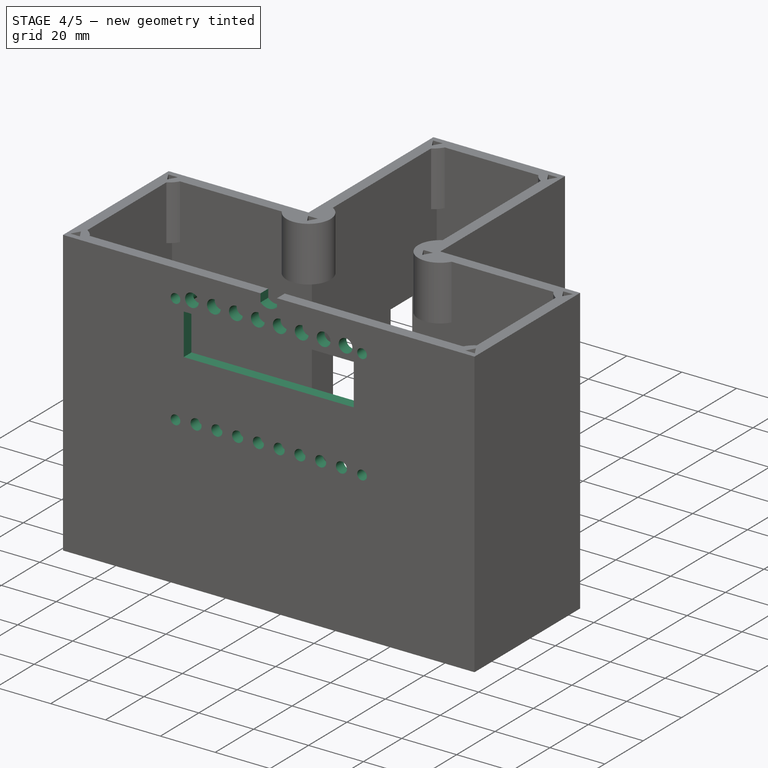
[diagram: stage 4 of 5 — iso view after this stage's code; geometry added in this stage tinted green]
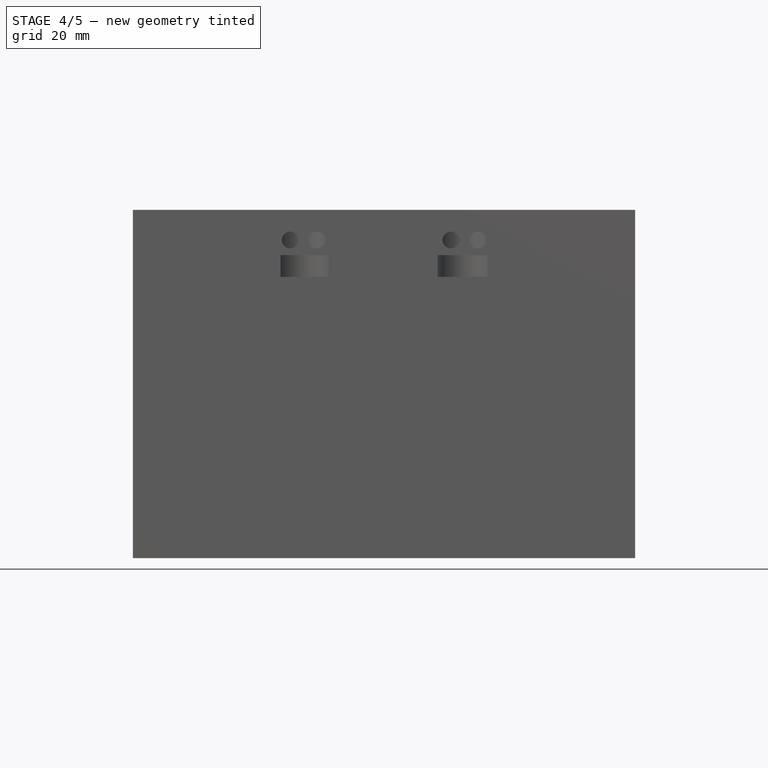
[diagram: stage 4 of 5 — front view after this stage's code; geometry added in this stage tinted green]
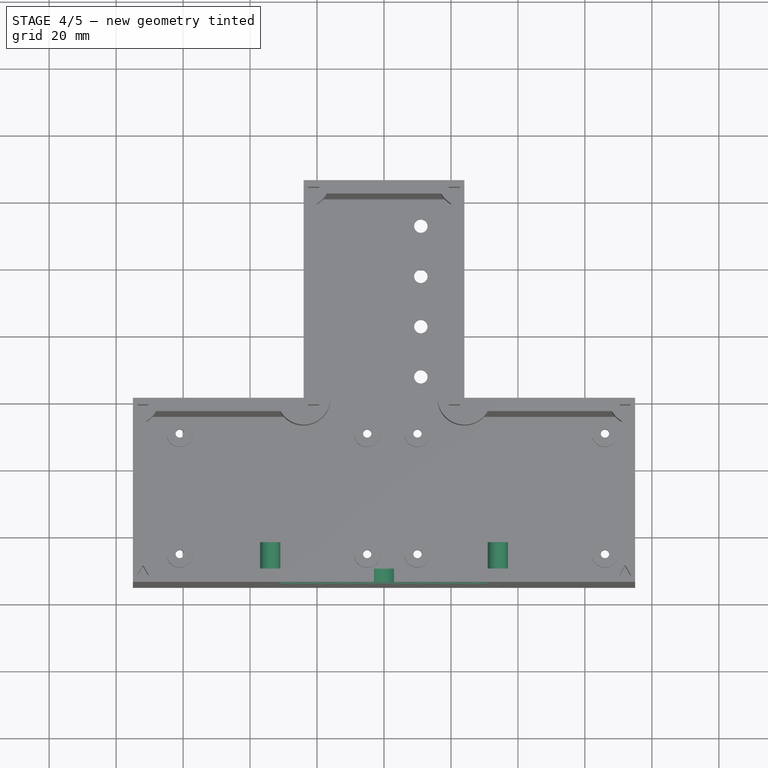
[diagram: stage 4 of 5 — top view after this stage's code; geometry added in this stage tinted green]
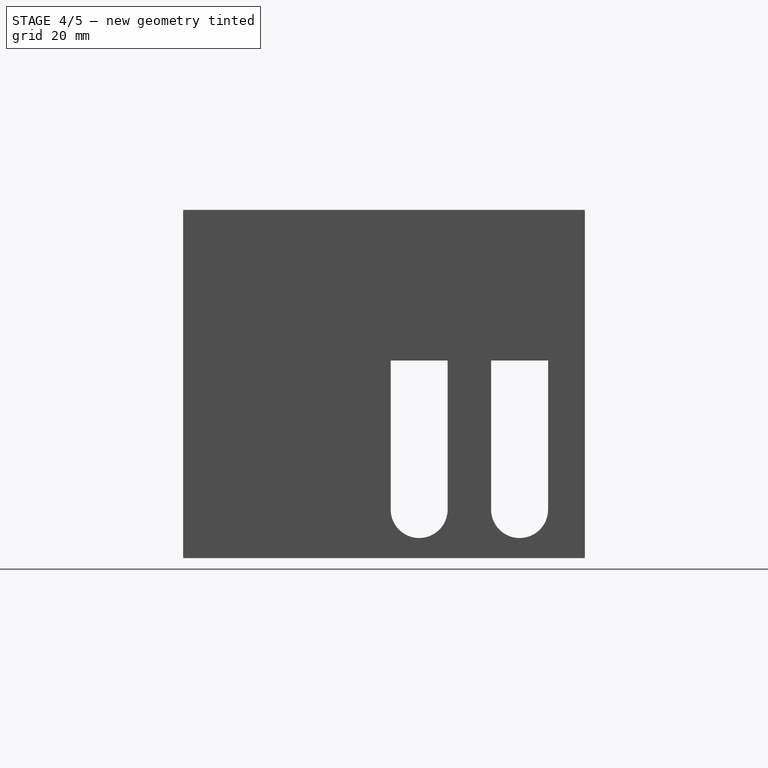
[diagram: stage 4 of 5 — right view after this stage's code; geometry added in this stage tinted green]
FEATURE [Sketcher::SketchObject] Sketch009
  ExternalGeometry = -> [Pocket004]
  FullyConstrained = true
  MapMode = 5
  Placement = pos=(0,-55,0) rot=(1,0,0;1.5708rad)
  Support = -> [Pocket004]
  sketch-geometry (4):
    g0: ArcOfCircle CenterX=0 CenterY=104 CenterZ=0 NormalX=0 NormalY=0 NormalZ=1 AngleXU=0 Radius=4.24264 StartAngle=3.92699 EndAngle=5.49779
    g1: LineSegment StartX=-3 StartY=101 StartZ=0 EndX=-3 EndY=104 EndZ=0
    g2: LineSegment StartX=3 StartY=101 StartZ=0 EndX=3 EndY=104 EndZ=0
    g3: LineSegment StartX=-3 StartY=104 StartZ=0 EndX=3 EndY=104 EndZ=0
  constraints (13):
    c: PointOnObject(g0,g-2)
    c: Horizontal(g0,g0)
    c: Coincident(g1,g0)
    c: PointOnObject(g1,g-3)
    c: Vertical(g1)
    c: Coincident(g2,g0)
    c: PointOnObject(g2,g-3)
    c: Vertical(g2)
    c: Coincident(g3,g1)
    c: Coincident(g3,g2)
    c: DistanceX(g3,g3) = 6
    c: PointOnObject(g0,g3)
    c: DistanceY(g2,g2) = 3
FEATURE [PartDesign::Pocket] Pocket005
  BaseFeature = -> Pocket004
  Length = 4
  Length2 = 100
  Profile = -> Sketch009
  Type = 0
FEATURE [Sketcher::SketchObject] Sketch010
  ExternalGeometry = -> [Pocket005]
  FullyConstrained = true
  MapMode = 5
  Placement = pos=(0,-55,0) rot=(1,0,0;1.5708rad)
  Support = -> [Pocket005]
  sketch-geometry (38):
    g0: Circle CenterX=-34 CenterY=94 CenterZ=0 NormalX=0 NormalY=0 NormalZ=1 AngleXU=0 Radius=1.75
    g1: Circle CenterX=34 CenterY=94 CenterZ=0 NormalX=0 NormalY=0 NormalZ=1 AngleXU=0 Radius=1.75
    g2: Circle CenterX=34 CenterY=54 CenterZ=0 NormalX=0 NormalY=0 NormalZ=1 AngleXU=0 Radius=1.75
    g3: Circle CenterX=-34 CenterY=54 CenterZ=0 NormalX=0 NormalY=0 NormalZ=1 AngleXU=0 Radius=1.75
    g4: LineSegment StartX=-31 StartY=90.5 StartZ=0 EndX=31 EndY=90.5 EndZ=0
    g5: LineSegment StartX=31 StartY=90.5 StartZ=0 EndX=31 EndY=75.5 EndZ=0
    g6: LineSegment StartX=31 StartY=75.5 StartZ=0 EndX=-31 EndY=75.5 EndZ=0
    g7: LineSegment StartX=-31 StartY=75.5 StartZ=0 EndX=-31 EndY=90.5 EndZ=0
    g8: Circle CenterX=-28 CenterY=95 CenterZ=0 NormalX=0 NormalY=0 NormalZ=1 AngleXU=0 Radius=2.5
    g9: Circle CenterX=-20 CenterY=95 CenterZ=0 NormalX=0 NormalY=0 NormalZ=1 AngleXU=0 Radius=2.5
    g10: LineSegment StartX=-28 StartY=95 StartZ=0 EndX=-20 EndY=95 EndZ=0
    g11: Circle CenterX=-12 CenterY=95 CenterZ=0 NormalX=0 NormalY=0 NormalZ=1 AngleXU=0 Radius=2.5
    g12: LineSegment StartX=-20 StartY=95 StartZ=0 EndX=-12 EndY=95 EndZ=0
    g13: Circle CenterX=-4 CenterY=95 CenterZ=0 NormalX=0 NormalY=0 NormalZ=1 AngleXU=0 Radius=2.5
    g14: LineSegment StartX=-12 StartY=95 StartZ=0 EndX=-4 EndY=95 EndZ=0
    g15: Circle CenterX=4 CenterY=95 CenterZ=0 NormalX=0 NormalY=0 NormalZ=1 AngleXU=0 Radius=2.5
    g16: LineSegment StartX=-4 StartY=95 StartZ=0 EndX=4 EndY=95 EndZ=0
    g17: Circle CenterX=12 CenterY=95 CenterZ=0 NormalX=0 NormalY=0 NormalZ=1 AngleXU=0 Radius=2.5
    g18: LineSegment StartX=4 StartY=95 StartZ=0 EndX=12 EndY=95 EndZ=0
    g19: Circle CenterX=20 CenterY=95 CenterZ=0 NormalX=0 NormalY=0 NormalZ=1 AngleXU=0 Radius=2.5
    g20: LineSegment StartX=12 StartY=95 StartZ=0 EndX=20 EndY=95 EndZ=0
    g21: Circle CenterX=28 CenterY=95 CenterZ=0 NormalX=0 NormalY=0 NormalZ=1 AngleXU=0 Radius=2.5
    g22: LineSegment StartX=20 StartY=95 StartZ=0 EndX=28 EndY=95 EndZ=0
    g23: Circle CenterX=-26.5 CenterY=54.5 CenterZ=0 NormalX=0 NormalY=0 NormalZ=1 AngleXU=0 Radius=2
    g24: Circle CenterX=-18.929 CenterY=54.5 CenterZ=0 NormalX=0 NormalY=0 NormalZ=1 AngleXU=0 Radius=2
    g25: LineSegment StartX=-26.5 StartY=54.5 StartZ=0 EndX=-18.929 EndY=54.5 EndZ=0
    g26: Circle CenterX=-11.358 CenterY=54.5 CenterZ=0 NormalX=0 NormalY=0 NormalZ=1 AngleXU=0 Radius=2
    g27: LineSegment StartX=-18.929 StartY=54.5 StartZ=0 EndX=-11.358 EndY=54.5 EndZ=0
    g28: Circle CenterX=-3.787 CenterY=54.5 CenterZ=0 NormalX=0 NormalY=0 NormalZ=1 AngleXU=0 Radius=2
    g29: LineSegment StartX=-11.358 StartY=54.5 StartZ=0 EndX=-3.787 EndY=54.5 EndZ=0
    g30: Circle CenterX=3.784 CenterY=54.5 CenterZ=0 NormalX=0 NormalY=0 NormalZ=1 AngleXU=0 Radius=2
    g31: LineSegment StartX=-3.787 StartY=54.5 StartZ=0 EndX=3.784 EndY=54.5 EndZ=0
    g32: Circle CenterX=11.355 CenterY=54.5 CenterZ=0 NormalX=0 NormalY=0 NormalZ=1 AngleXU=0 Radius=2
    g33: LineSegment StartX=3.784 StartY=54.5 StartZ=0 EndX=11.355 EndY=54.5 EndZ=0
    g34: Circle CenterX=18.926 CenterY=54.5 CenterZ=0 NormalX=0 NormalY=0 NormalZ=1 AngleXU=0 Radius=2
    g35: LineSegment StartX=11.355 StartY=54.5 StartZ=0 EndX=18.926 EndY=54.5 EndZ=0
    g36: Circle CenterX=26.497 CenterY=54.5 CenterZ=0 NormalX=0 NormalY=0 NormalZ=1 AngleXU=0 Radius=2
    g37: LineSegment StartX=18.926 StartY=54.5 StartZ=0 EndX=26.497 EndY=54.5 EndZ=0
  constraints (99):
    c: Equal(g0,g1)
    c: Equal(g1,g2)
    c: Equal(g2,g3)
    c: Diameter(g0) = 3.5
    c: Vertical(g0,g3)
    c: Vertical(g1,g2)
    c: Horizontal(g0,g1)
    c: DistanceX(g3,g2) = 68
    c: DistanceY(g2,g1) = 40
    c: Symmetric(g3,g2,g-2)
    c: DistanceY(g1,g-3) = 10
    c: Coincident(g4,g5)
    c: Coincident(g5,g6)
    c: Coincident(g6,g7)
    c: Coincident(g7,g4)
    c: Horizontal(g4)
    c: Horizontal(g6)
    c: Vertical(g5)
    c: Vertical(g7)
    c: DistanceX(g4,g4) = 62
    c: DistanceY(g5,g5) = 15
    c: DistanceX(g0,g4) = 3
    c: DistanceY(g4,g0) = 3.5
    c: DistanceX(g0,g8) = 6
    c: DistanceY(g0,g8) = 1
    c: Diameter(g8) = 5
    c: Diameter(g9) = 5
    c: Coincident(g8,g10)
    c: Coincident(g9,g10)
    c: Distance(g10) = 8
    c: Angle(g10) = 0
    c: Diameter(g11) = 5
    c: Coincident(g9,g12)
    c: Coincident(g11,g12)
    c: Equal(g10,g12)
    c: Parallel(g12,g10)
    c: Diameter(g13) = 5
    c: Coincident(g11,g14)
    c: Coincident(g13,g14)
    c: Equal(g10,g14)
    c: Parallel(g14,g10)
    c: Diameter(g15) = 5
    c: Coincident(g13,g16)
    c: Coincident(g15,g16)
    c: Equal(g10,g16)
    c: Parallel(g16,g10)
    c: Diameter(g17) = 5
    c: Coincident(g15,g18)
    c: Coincident(g17,g18)
    c: Equal(g10,g18)
    c: Parallel(g18,g10)
    c: Diameter(g19) = 5
    c: Coincident(g17,g20)
    c: Coincident(g19,g20)
    c: Equal(g10,g20)
    c: Parallel(g20,g10)
    c: Diameter(g21) = 5
    c: Coincident(g19,g22)
    c: Coincident(g21,g22)
    c: Equal(g10,g22)
    c: Parallel(g22,g10)
    c: DistanceX(g3,g23) = 7.5
    c: DistanceY(g3,g23) = 0.5
    c: Diameter(g23) = 4
    c: Diameter(g24) = 4
    c: Coincident(g23,g25)
    c: Coincident(g24,g25)
    c: Distance(g25) = 7.571
    c: Angle(g25) = 0
    c: Diameter(g26) = 4
    c: Coincident(g24,g27)
    c: Coincident(g26,g27)
    c: Equal(g25,g27)
    c: Parallel(g27,g25)
    c: Diameter(g28) = 4
    c: Coincident(g26,g29)
    c: Coincident(g28,g29)
    c: Equal(g25,g29)
    c: Parallel(g29,g25)
    c: Diameter(g30) = 4
    c: Coincident(g28,g31)
    c: Coincident(g30,g31)
    c: Equal(g25,g31)
    c: Parallel(g31,g25)
    c: Diameter(g32) = 4
    c: Coincident(g30,g33)
    c: Coincident(g32,g33)
    c: Equal(g25,g33)
    c: Parallel(g33,g25)
    c: Diameter(g34) = 4
    c: Coincident(g32,g35)
    c: Coincident(g34,g35)
    c: Equal(g25,g35)
    c: Parallel(g35,g25)
    c: Diameter(g36) = 4
    c: Coincident(g34,g37)
    c: Coincident(g36,g37)
    c: Equal(g25,g37)
    c: Parallel(g37,g25)
FEATURE [PartDesign::Pocket] Pocket006
  BaseFeature = -> Pocket005
  Length = 4
  Length2 = 100
  Profile = -> Sketch010
  Type = 0
FEATURE [Sketcher::SketchObject] Sketch011
  ExternalGeometry = -> [Pocket006]
  FullyConstrained = true
  MapMode = 5
  Placement = pos=(0,-51,0) rot=(0,0.707107,0.707107;3.14159rad)
  Support = -> [Pocket006]
  sketch-geometry (8):
    g0: Circle CenterX=-34 CenterY=94 CenterZ=0 NormalX=0 NormalY=0 NormalZ=1 AngleXU=0 Radius=1.75
    g1: Circle CenterX=-34 CenterY=94 CenterZ=0 NormalX=0 NormalY=0 NormalZ=1 AngleXU=0 Radius=3
    g2: Circle CenterX=34 CenterY=94 CenterZ=0 NormalX=0 NormalY=0 NormalZ=1 AngleXU=0 Radius=1.75
    g3: Circle CenterX=34 CenterY=94 CenterZ=0 NormalX=0 NormalY=0 NormalZ=1 AngleXU=0 Radius=3
    g4: Circle CenterX=-34 CenterY=54 CenterZ=0 NormalX=0 NormalY=0 NormalZ=1 AngleXU=0 Radius=3
    g5: Circle CenterX=-34 CenterY=54 CenterZ=0 NormalX=0 NormalY=0 NormalZ=1 AngleXU=0 Radius=1.75
    g6: Circle CenterX=34 CenterY=54 CenterZ=0 NormalX=0 NormalY=0 NormalZ=1 AngleXU=0 Radius=1.75
    g7: Circle CenterX=34 CenterY=54 CenterZ=0 NormalX=0 NormalY=0 NormalZ=1 AngleXU=0 Radius=3
  constraints (16):
    c: Coincident(g1,g0)
    c: Coincident(g3,g2)
    c: Coincident(g5,g4)
    c: Coincident(g7,g6)
    c: Equal(g6,g2)
    c: Equal(g2,g0)
    c: Equal(g0,g5)
    c: Diameter(g2) = 3.5
    c: Equal(g7,g3)
    c: Equal(g3,g1)
    c: Equal(g1,g4)
    c: Diameter(g3) = 6
    c: Coincident(g0,g-8)
    c: Coincident(g4,g-7)
    c: Coincident(g2,g-5)
    c: Coincident(g6,g-6)
FEATURE [PartDesign::Pad] Pad004
  BaseFeature = -> Pocket006
  Direction = (1,1,1)
  Length = 8
  Length2 = 100
  Profile = -> Sketch011
  Type = 0
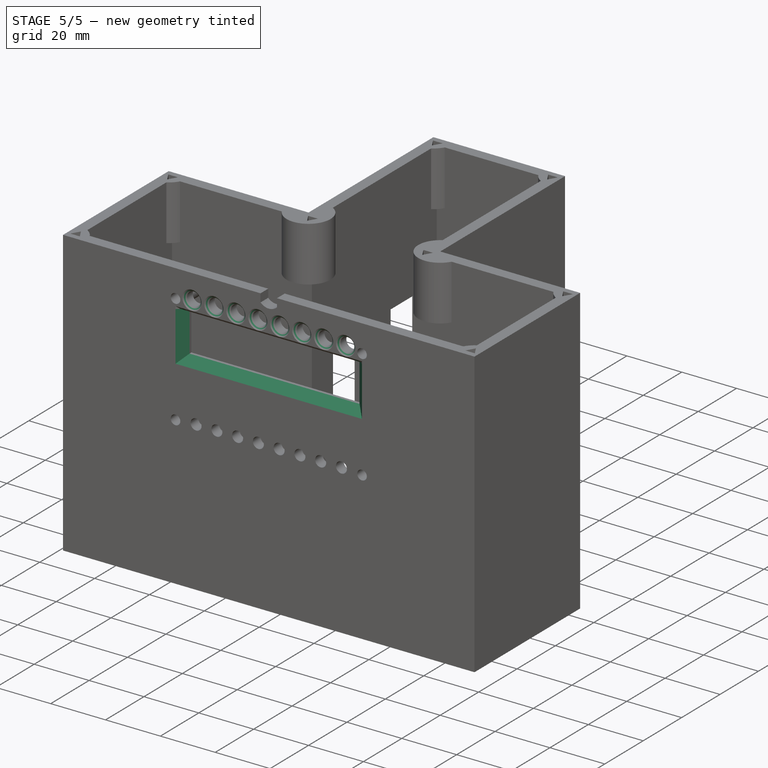
[diagram: stage 5 of 5 — iso view after this stage's code; geometry added in this stage tinted green]
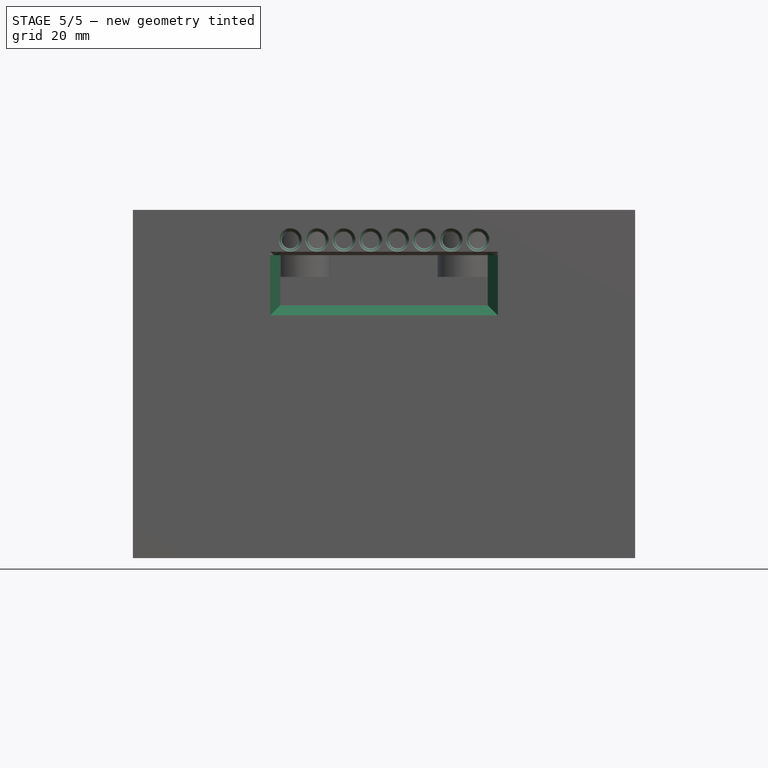
[diagram: stage 5 of 5 — front view after this stage's code; geometry added in this stage tinted green]
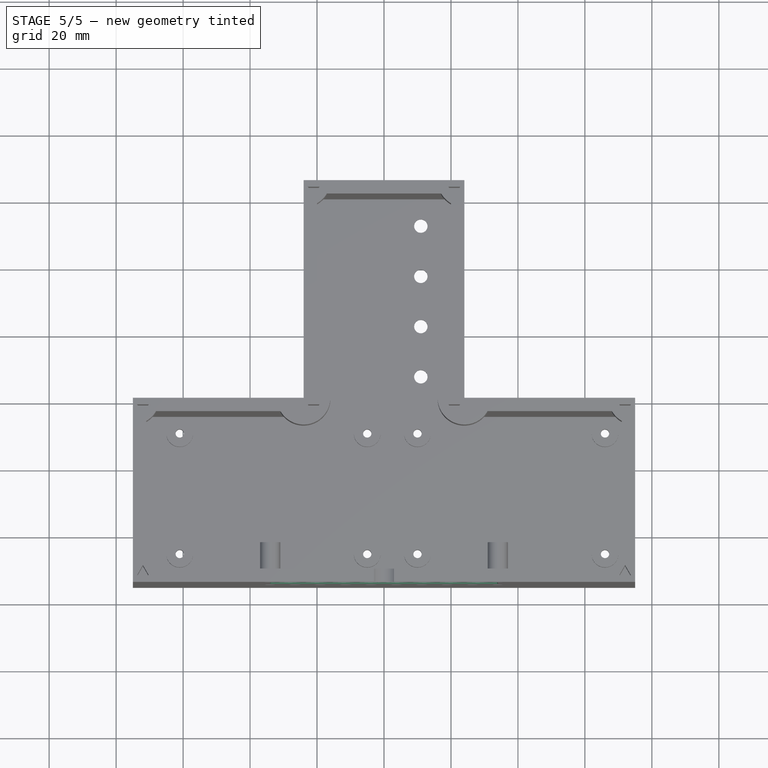
[diagram: stage 5 of 5 — top view after this stage's code; geometry added in this stage tinted green]
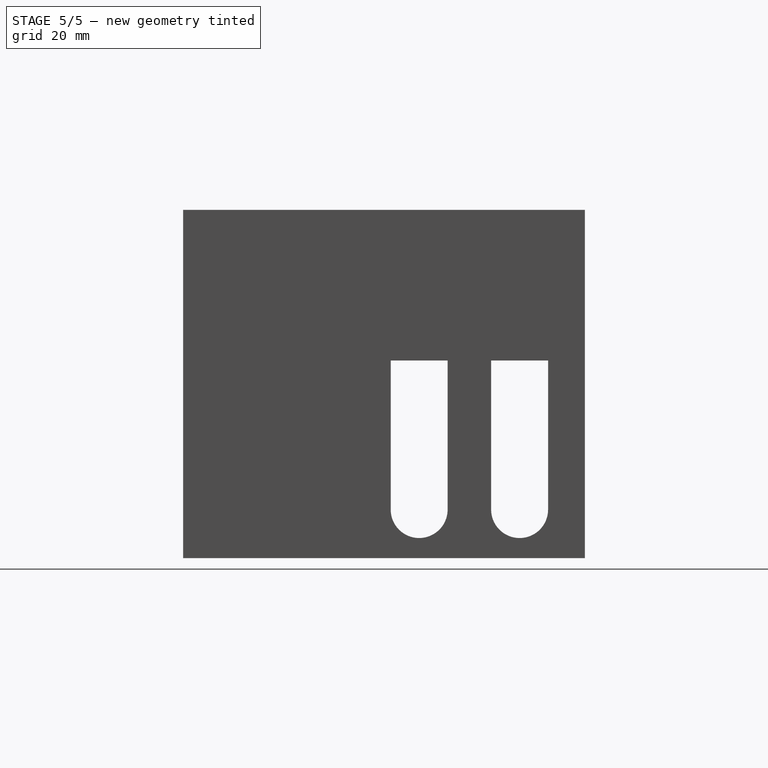
[diagram: stage 5 of 5 — right view after this stage's code; geometry added in this stage tinted green]
FEATURE [PartDesign::CoordinateSystem] LCS_7
  AttacherType = Attacher::AttachEngine3D
  AttachmentOffset = pos=(3,-3,0) rot=(0,0,1;0rad)
  MapMode = 1
  Placement = pos=(-21,62,104) rot=(0,0,1;0rad)
  Support = -> [Pad004]
FEATURE [PartDesign::Chamfer] Chamfer
  Angle = 45
  Base = -> Pad004 [Edge50,Edge49,Edge51]
  BaseFeature = -> Pad004
  ChamferType = 0
  FlipDirection = false
  Size = 3
  Size2 = 1
  SupportTransform = false
FEATURE [PartDesign::Chamfer] Chamfer001
  Angle = 45
  Base = -> Chamfer [Edge2]
  BaseFeature = -> Chamfer
  ChamferType = 0
  FlipDirection = false
  Size = 1
  Size2 = 1
  SupportTransform = false
FEATURE [PartDesign::Chamfer] Chamfer002
  Angle = 45
  Base = -> Chamfer001 [Edge21,Edge23,Edge24,Edge25,Edge26,Edge27,Edge28,Edge29]
  BaseFeature = -> Chamfer001
  ChamferType = 0
  FlipDirection = false
  Size = 1
  Size2 = 1
  SupportTransform = false
FEATURE [PartDesign::CoordinateSystem] LCS_8
  AttacherType = Attacher::AttachEngine3D
  MapMode = 11
  Placement = pos=(-34,-43,94) rot=(0.57735,0.57735,0.57735;4.18879rad)
  Support = -> [Chamfer002]
FEATURE [PartDesign::CoordinateSystem] LCS_9
  AttacherType = Attacher::AttachEngine3D
  MapMode = 11
  Placement = pos=(-26.5,-51,54.5) rot=(0.57735,-0.57735,0.57735;2.0944rad)
  Support = -> [Chamfer002]
FEATURE [PartDesign::CoordinateSystem] LCS_10
  AttacherType = Attacher::AttachEngine3D
  MapMode = 11
  Placement = pos=(-18.929,-51,54.5) rot=(0.57735,-0.57735,0.57735;2.0944rad)
  Support = -> [Chamfer002]
FEATURE [PartDesign::CoordinateSystem] LCS_11
  AttacherType = Attacher::AttachEngine3D
  MapMode = 11
  Placement = pos=(-11.358,-51,54.5) rot=(0.57735,-0.57735,0.57735;2.0944rad)
  Support = -> [Chamfer002]
FEATURE [PartDesign::CoordinateSystem] LCS_12
  AttacherType = Attacher::AttachEngine3D
  MapMode = 11
  Placement = pos=(-3.787,-51,54.5) rot=(0.57735,-0.57735,0.57735;2.0944rad)
  Support = -> [Chamfer002]
FEATURE [PartDesign::CoordinateSystem] LCS_13
  AttacherType = Attacher::AttachEngine3D
  MapMode = 11
  Placement = pos=(3.784,-51,54.5) rot=(0.57735,-0.57735,0.57735;2.0944rad)
  Support = -> [Chamfer002]
FEATURE [PartDesign::CoordinateSystem] LCS_14
  AttacherType = Attacher::AttachEngine3D
  MapMode = 11
  Placement = pos=(11.355,-51,54.5) rot=(0.57735,-0.57735,0.57735;2.0944rad)
  Support = -> [Chamfer002]
FEATURE [PartDesign::CoordinateSystem] LCS_15
  AttacherType = Attacher::AttachEngine3D
  MapMode = 11
  Placement = pos=(18.926,-51,54.5) rot=(0.57735,-0.57735,0.57735;2.0944rad)
  Support = -> [Chamfer002]
FEATURE [PartDesign::CoordinateSystem] LCS_16
  AttacherType = Attacher::AttachEngine3D
  MapMode = 11
  Placement = pos=(26.497,-51,54.5) rot=(0.57735,-0.57735,0.57735;2.0944rad)
  Support = -> [Chamfer002]
FEATURE [PartDesign::Body] Body
  Group = -> [Sketch,Pad,Sketch001,LCS_3,LCS_1,LCS_2,Pocket,Sketch002,Pad001,Sketch003,Pocket001,LCS_4,LCS_5,Sketch004,Pad002,Sketch005,Pocket002,Sketch006,Pocket003,LCS_6,Sketch007,Pad003,Sketch008,Pocket004,Sketch009,Pocket005,Sketch010,Pocket006,Sketch011,Pad004,LCS_7,Chamfer,Chamfer001,Chamfer002,LCS_8,LCS_9,LCS_10,LCS_11,LCS_12,LCS_13,LCS_14,LCS_15,LCS_16]
  Origin = -> Origin
  Tip = -> Chamfer002
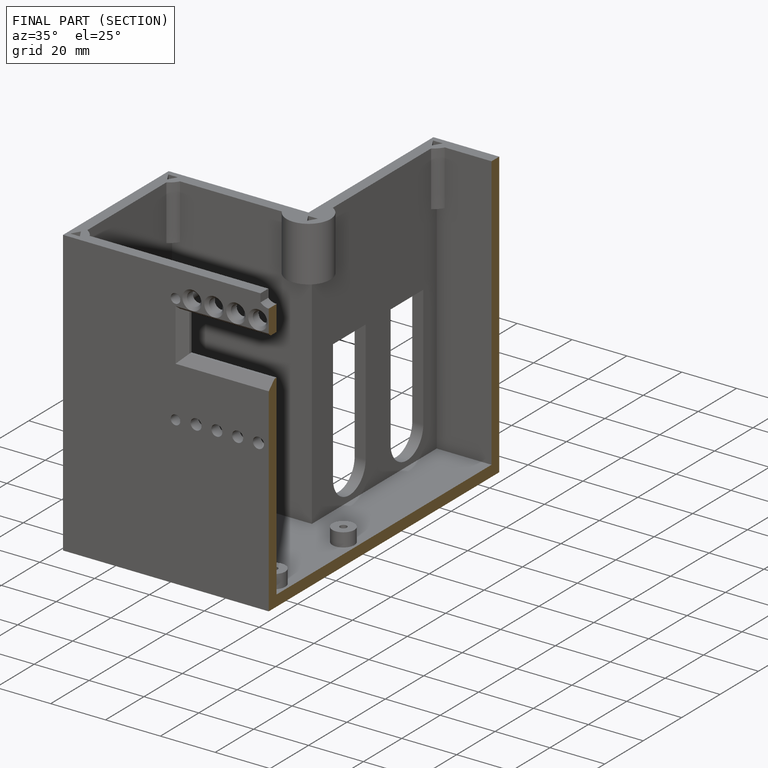
[diagram: finished part — half-section view (interior)]
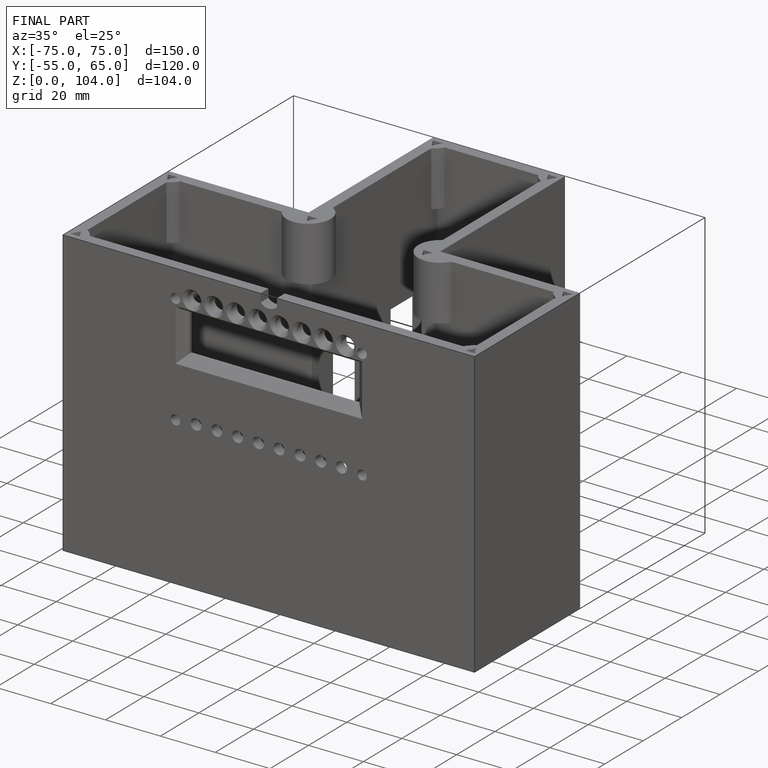
[diagram: finished part — iso view with bounding-box wireframe]
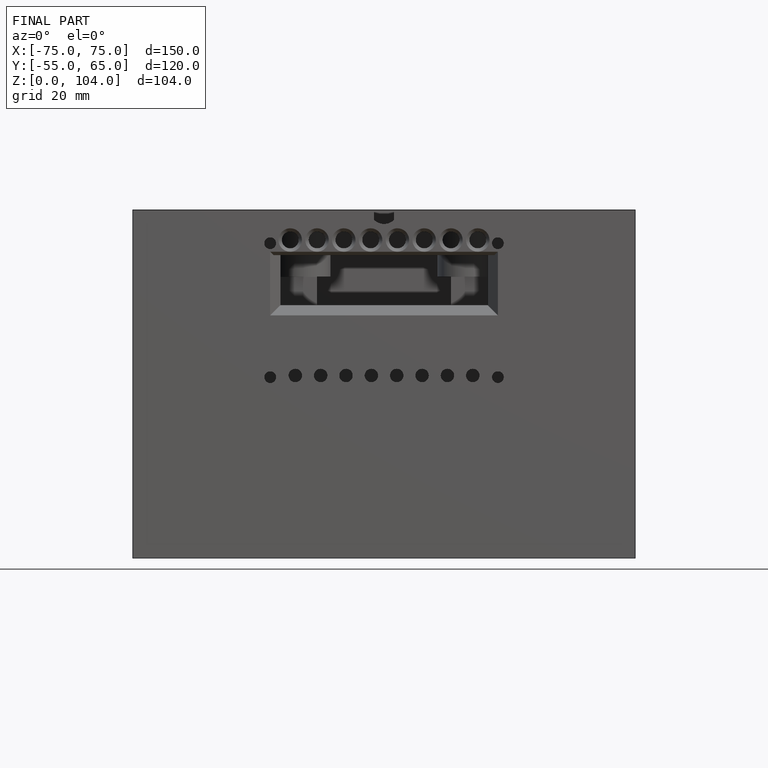
[diagram: finished part — front view with bounding-box wireframe]
